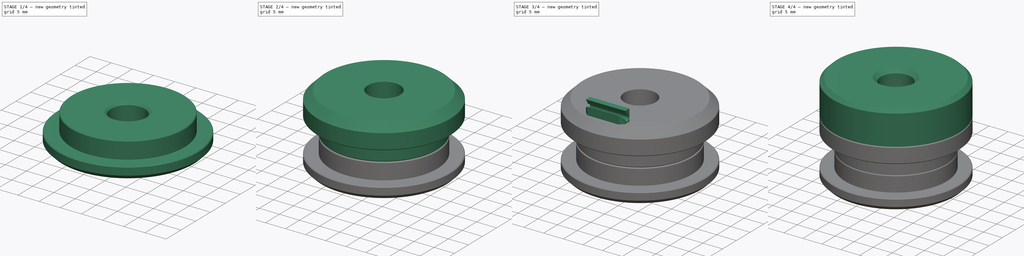
[diagram: build sequence overview — one tinted view per stage of 4, left to right]
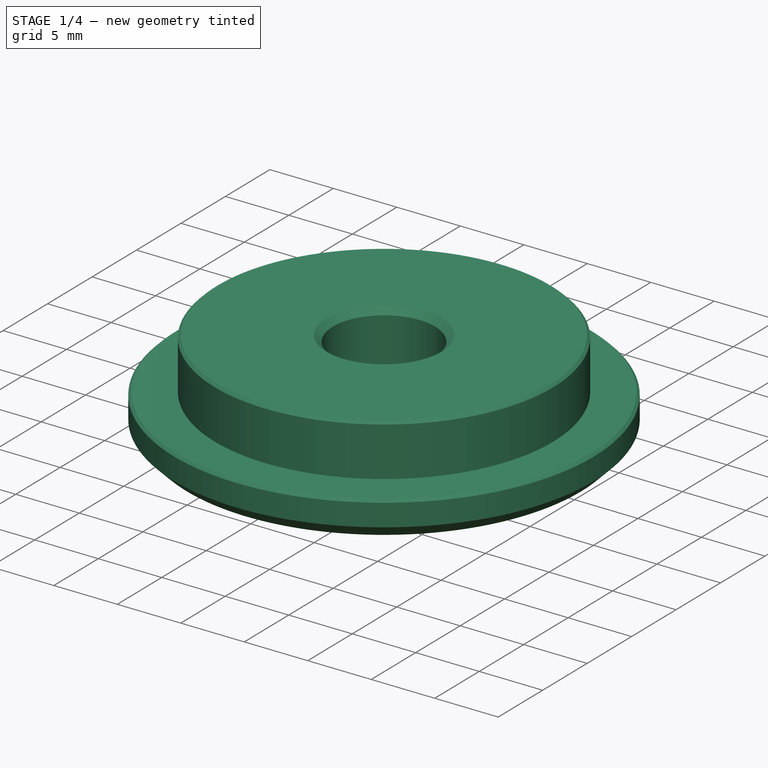
[diagram: stage 1 of 4 — iso view after this stage's code; geometry added in this stage tinted green]
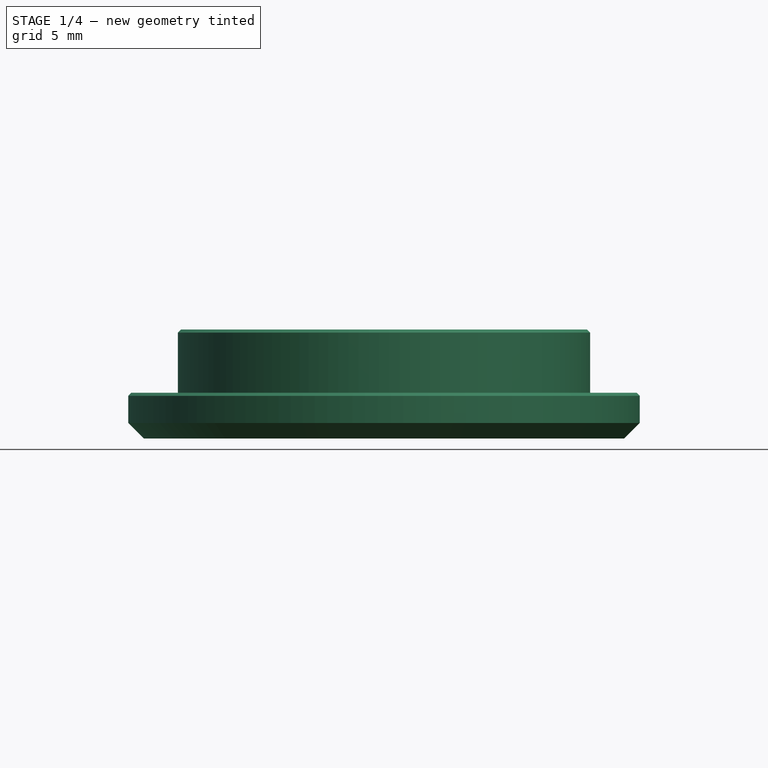
[diagram: stage 1 of 4 — front view after this stage's code; geometry added in this stage tinted green]
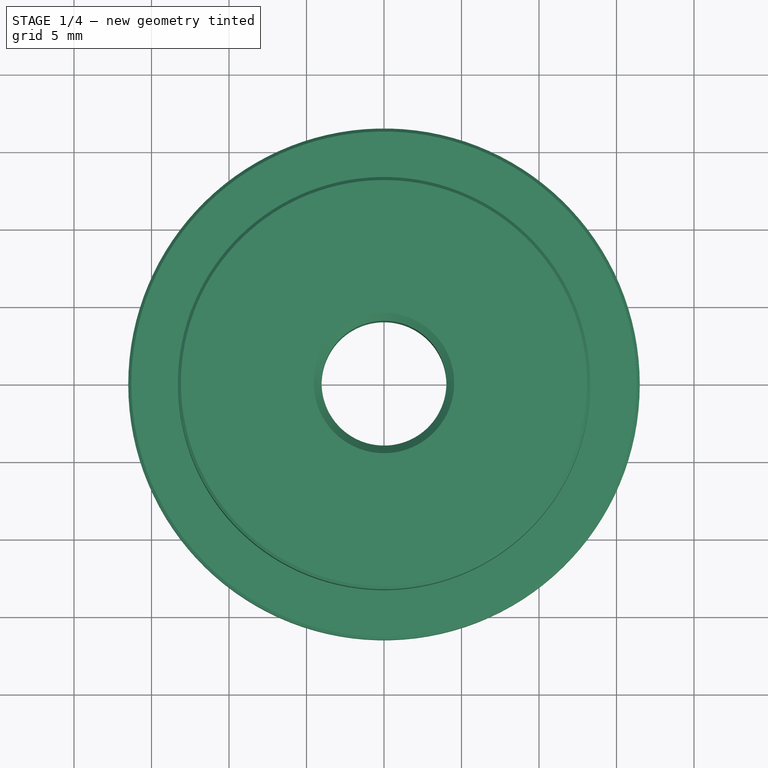
[diagram: stage 1 of 4 — top view after this stage's code; geometry added in this stage tinted green]
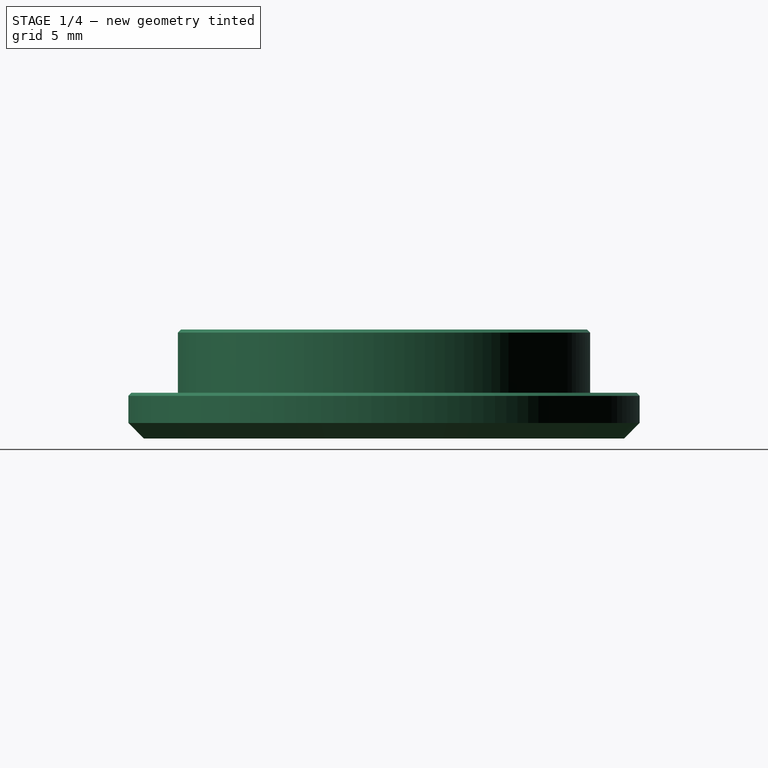
[diagram: stage 1 of 4 — right view after this stage's code; geometry added in this stage tinted green]
FCSTD DOCUMENT  (FreeCAD 1.0R39109 (Git))
Label: M56_bushing_front_back
License: All rights reserved
LicenseURL: https://en.wikipedia.org/wiki/All_rights_reserved
objects: PartDesign::Chamfer×9, Sketcher::SketchObject×5, PartDesign::Revolution×3, PartDesign::Body×3, Spreadsheet::Sheet×1, PartDesign::Pad×1, PartDesign::Pocket×1
note: 55 computed .brp shape members not serialized (recipe doc carries the construction recipe); baked Part::Feature solids carry a one-line shape summary decoded from their .brp

FEATURE [Sketcher::SketchObject] Sketch002
  ArcFitTolerance = 1e-06
  AttachmentSupport = -> [XZ_Plane002]
  FullyConstrained = true
  MakeInternals = false
  MapMode = 5
  Placement = pos=(0,0,0) rot=(1,0,0;1.5708rad)
  expr: Constraints[12] = Spreadsheet.jt
  expr: Constraints[13] = Spreadsheet.bl - Spreadsheet.jt + Spreadsheet.cet / 2
  expr: Constraints[14] = Spreadsheet.cet / 2 - Spreadsheet.jt
  expr: Constraints[15] = Spreadsheet.od / 2
  expr: Constraints[16] = Spreadsheet.ced / 2
  expr: Constraints[17] = Spreadsheet.id / 2
  sketch-geometry (6):
    g0: LineSegment StartX=-4.025 StartY=-0.05 StartZ=0 EndX=-13.3 EndY=-0.05 EndZ=0
    g1: LineSegment StartX=-13.3 StartY=-0.05 StartZ=0 EndX=-13.3 EndY=-4.125 EndZ=0
    g2: LineSegment StartX=-13.3 StartY=-4.125 StartZ=0 EndX=-16.5 EndY=-4.125 EndZ=0
    g3: LineSegment StartX=-16.5 StartY=-4.125 StartZ=0 EndX=-16.5 EndY=-7.075 EndZ=0
    g4: LineSegment StartX=-16.5 StartY=-7.075 StartZ=0 EndX=-4.025 EndY=-7.075 EndZ=0
    g5: LineSegment StartX=-4.025 StartY=-7.075 StartZ=0 EndX=-4.025 EndY=-0.05 EndZ=0
  constraints (18):
    c: Horizontal(g0)
    c: Coincident(g1,g0)
    c: Vertical(g1)
    c: Coincident(g2,g1)
    c: Horizontal(g2)
    c: Coincident(g3,g2)
    c: Vertical(g3)
    c: Coincident(g4,g3)
    c: Horizontal(g4)
    c: Coincident(g5,g4)
    c: Coincident(g5,g0)
    c: Vertical(g5)
    c: DistanceY(g0,g-1) = 0.05
    c: DistanceY(g4,g-1) = 7.075
    c: DistanceY(g1,g0) = 4.075
    c: DistanceX(g3,g-1) = 16.5
    c: DistanceX(g1,g-1) = 13.3
    c: DistanceX(g0,g-1) = 4.025
FEATURE [PartDesign::Revolution] Revolution002
  Angle = 360
  Angle2 = 60
  Axis = (0,2e-16,1)
  Base = (0,0,0)
  Placement = pos=(0,0,0) rot=(1,0,0;1.5708rad)
  Profile = -> Sketch002
  ReferenceAxis = -> Sketch002 [V_Axis]
  Refine = true
  Suppressed = false
  Type = 0
FEATURE [PartDesign::Chamfer] Chamfer001
  Angle = 45
  Base = -> Revolution002 [Edge8,Edge6]
  BaseFeature = -> Revolution002
  ChamferType = 0
  FlipDirection = false
  Placement = pos=(0,0,0) rot=(1,0,0;1.5708rad)
  Refine = true
  Size = 1
  Size2 = 1
  SupportTransform = false
  Suppressed = false
  UseAllEdges = false
FEATURE [PartDesign::Chamfer] Chamfer002
  Angle = 45
  Base = -> Chamfer001 [Edge8,Edge3]
  BaseFeature = -> Chamfer001
  ChamferType = 0
  FlipDirection = false
  Placement = pos=(0,0,0) rot=(1,0,0;1.5708rad)
  Refine = true
  Size = 0.2
  Size2 = 1
  SupportTransform = false
  Suppressed = false
  UseAllEdges = false
FEATURE [PartDesign::Body] Body001  label="bushing_top"
  AllowCompound = false
  Group = -> [Sketch001,Revolution001,Chamfer003,Chamfer004,Sketch003,Pad,Sketch004,Pocket,Chamfer005,Chamfer006,Chamfer007]
  Origin = -> Origin001
  Tip = -> Chamfer007
FEATURE [PartDesign::Chamfer] Chamfer008
  Angle = 45
  Base = -> Chamfer002 [Edge17]
  BaseFeature = -> Chamfer002
  ChamferType = 0
  FlipDirection = false
  Placement = pos=(0,0,0) rot=(1,0,0;1.5708rad)
  Refine = true
  Size = 0.5
  Size2 = 1
  SupportTransform = false
  Suppressed = false
  UseAllEdges = false
FEATURE [PartDesign::Body] Body002  label="bushing_bottom"
  AllowCompound = false
  Group = -> [Sketch002,Revolution002,Chamfer001,Chamfer002,Chamfer008]
  Origin = -> Origin002
  Tip = -> Chamfer008
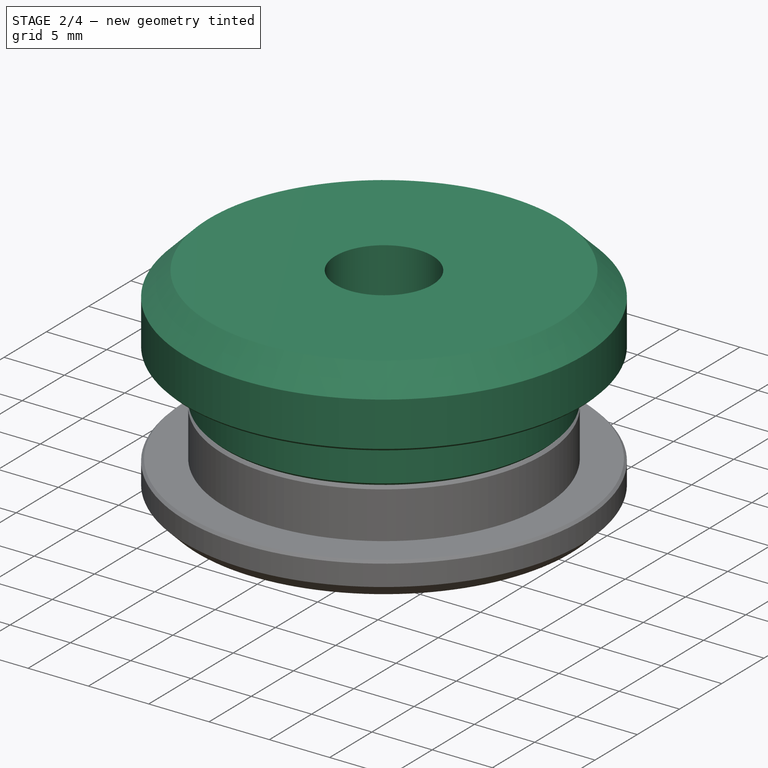
[diagram: stage 2 of 4 — iso view after this stage's code; geometry added in this stage tinted green]
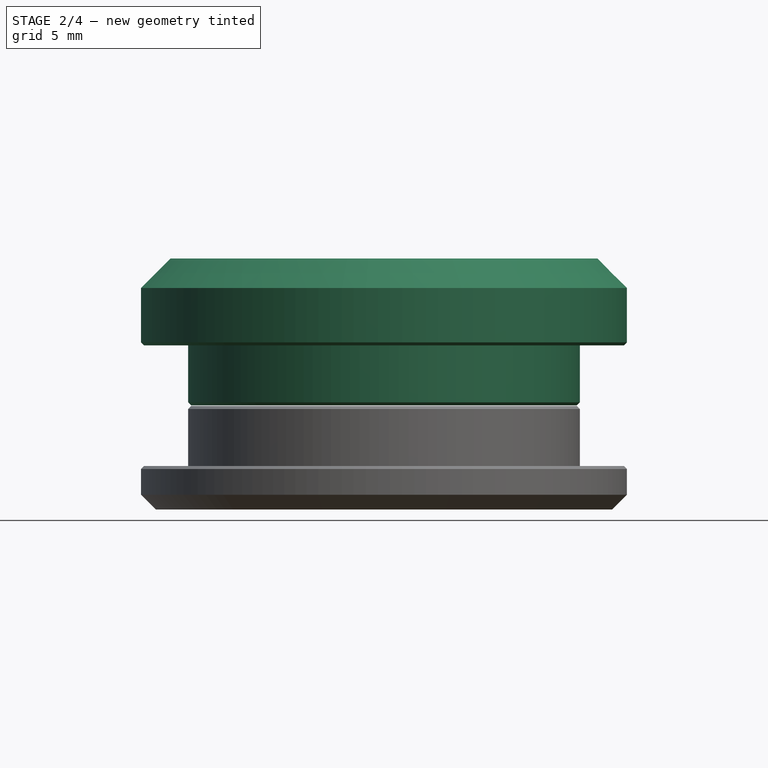
[diagram: stage 2 of 4 — front view after this stage's code; geometry added in this stage tinted green]
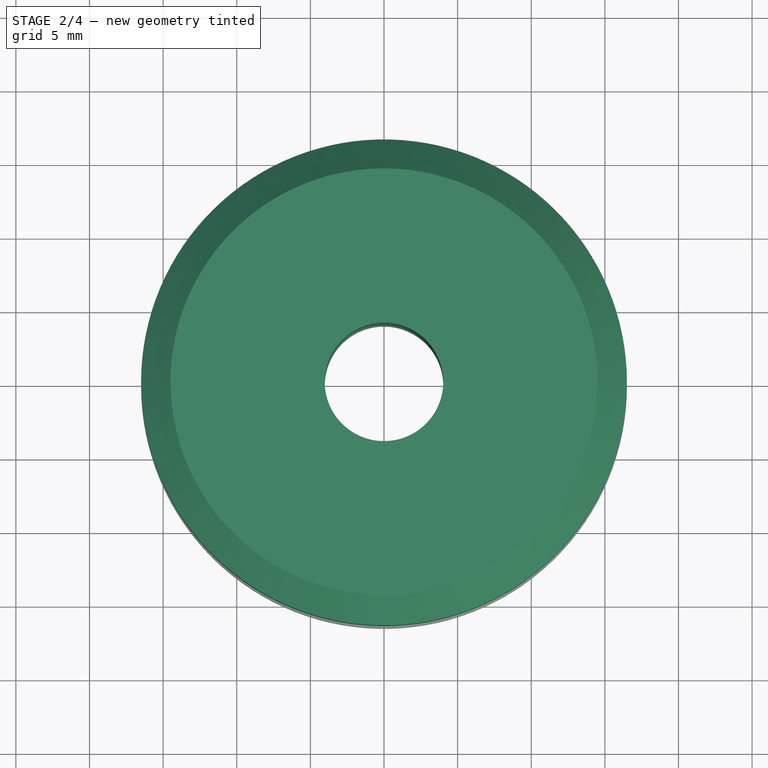
[diagram: stage 2 of 4 — top view after this stage's code; geometry added in this stage tinted green]
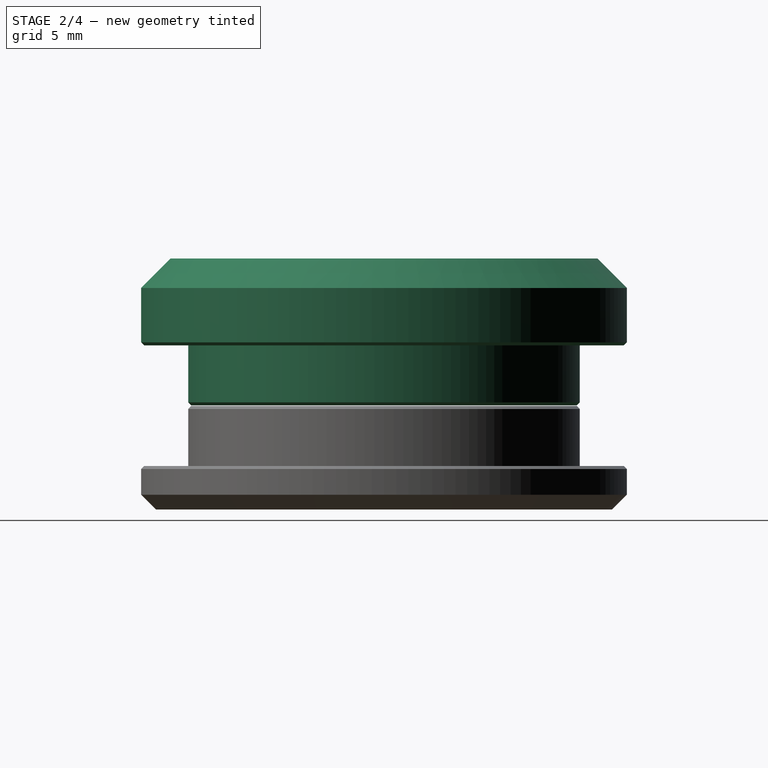
[diagram: stage 2 of 4 — right view after this stage's code; geometry added in this stage tinted green]
FEATURE [PartDesign::Body] Body
  AllowCompound = false
  Group = -> [Sketch,Revolution,Chamfer]
  Origin = -> Origin
  Tip = -> Chamfer
FEATURE [Sketcher::SketchObject] Sketch001
  ArcFitTolerance = 1e-06
  AttachmentSupport = -> [XZ_Plane001]
  FullyConstrained = true
  MakeInternals = false
  MapMode = 5
  Placement = pos=(0,0,0) rot=(1,0,0;1.5708rad)
  expr: Constraints[13] = Spreadsheet.bt - Spreadsheet.jt - Spreadsheet.bl - Spreadsheet.cet / 2
  expr: Constraints[14] = Spreadsheet.id / 2
  expr: Constraints[15] = Spreadsheet.od / 2
  expr: Constraints[16] = Spreadsheet.ced / 2
  expr: Constraints[17] = Spreadsheet.cet / 2 - Spreadsheet.jt
  sketch-geometry (6):
    g0: LineSegment StartX=-4.025 StartY=0 StartZ=0 EndX=-4.025 EndY=9.97 EndZ=0
    g1: LineSegment StartX=-4.025 StartY=9.97 StartZ=0 EndX=-16.5 EndY=9.97 EndZ=0
    g2: LineSegment StartX=-16.5 StartY=9.97 StartZ=0 EndX=-16.5 EndY=4.075 EndZ=0
    g3: LineSegment StartX=-16.5 StartY=4.075 StartZ=0 EndX=-13.3 EndY=4.075 EndZ=0
    g4: LineSegment StartX=-13.3 StartY=4.075 StartZ=0 EndX=-13.3 EndY=0 EndZ=0
    g5: LineSegment StartX=-13.3 StartY=0 StartZ=0 EndX=-4.025 EndY=0 EndZ=0
  constraints (18):
    c: PointOnObject(g0,g-1)
    c: Vertical(g0)
    c: Coincident(g1,g0)
    c: Horizontal(g1)
    c: Coincident(g2,g1)
    c: Vertical(g2)
    c: Coincident(g3,g2)
    c: Horizontal(g3)
    c: Coincident(g4,g3)
    c: PointOnObject(g4,g-1)
    c: Vertical(g4)
    c: Coincident(g5,g4)
    c: Coincident(g5,g0)
    c: DistanceY(g0,g0) = 9.97
    c: DistanceX(g0,g-1) = 4.025
    c: DistanceX(g1,g-1) = 16.5
    c: DistanceX(g4,g-1) = 13.3
    c: DistanceY(g4,g3) = 4.075
FEATURE [PartDesign::Revolution] Revolution001
  Angle = 360
  Angle2 = 60
  Axis = (0,2e-16,1)
  Base = (0,0,0)
  Placement = pos=(0,0,0) rot=(1,0,0;1.5708rad)
  Profile = -> Sketch001
  ReferenceAxis = -> Sketch001 [V_Axis]
  Refine = true
  Suppressed = false
  Type = 0
FEATURE [PartDesign::Chamfer] Chamfer003
  Angle = 45
  Base = -> Revolution001 [Edge8,Edge5]
  BaseFeature = -> Revolution001
  ChamferType = 0
  FlipDirection = false
  Placement = pos=(0,0,0) rot=(1,0,0;1.5708rad)
  Refine = true
  Size = 0.2
  Size2 = 1
  SupportTransform = false
  Suppressed = false
  UseAllEdges = false
FEATURE [PartDesign::Chamfer] Chamfer004
  Angle = 45
  Base = -> Chamfer003 [Edge3]
  BaseFeature = -> Chamfer003
  ChamferType = 0
  FlipDirection = false
  Placement = pos=(0,0,0) rot=(1,0,0;1.5708rad)
  Refine = true
  Size = 2
  Size2 = 1
  SupportTransform = false
  Suppressed = false
  UseAllEdges = false
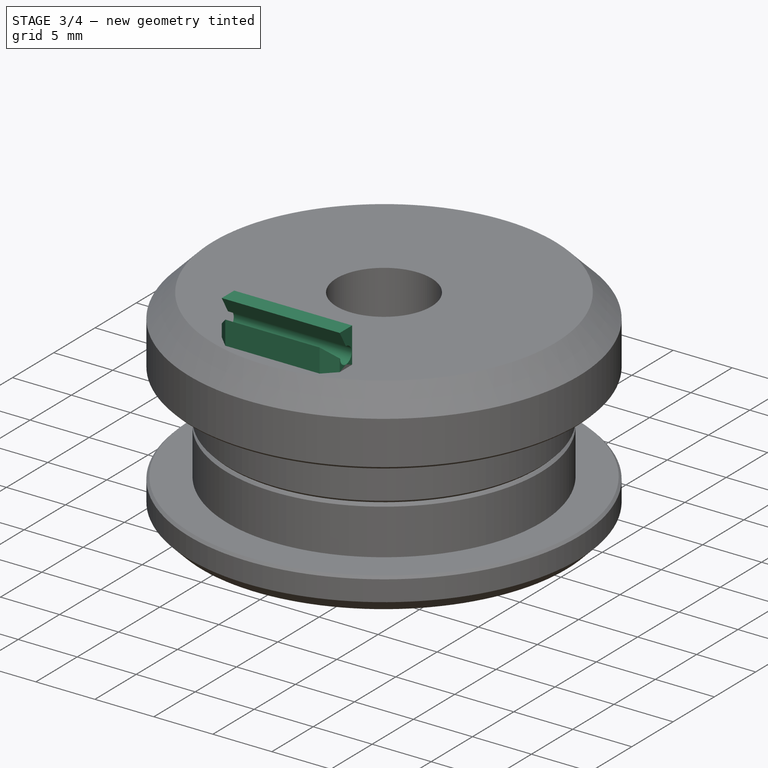
[diagram: stage 3 of 4 — iso view after this stage's code; geometry added in this stage tinted green]
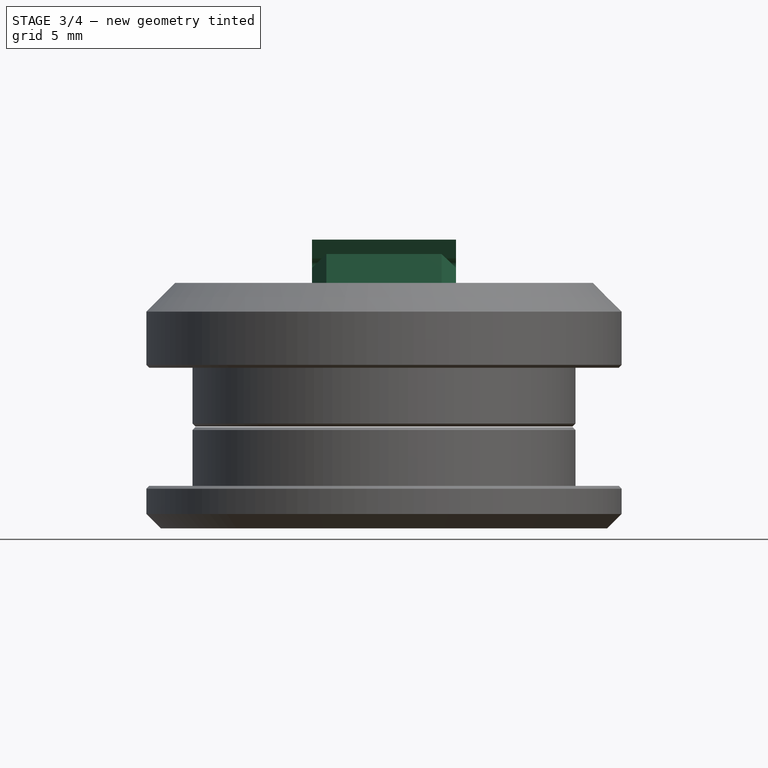
[diagram: stage 3 of 4 — front view after this stage's code; geometry added in this stage tinted green]
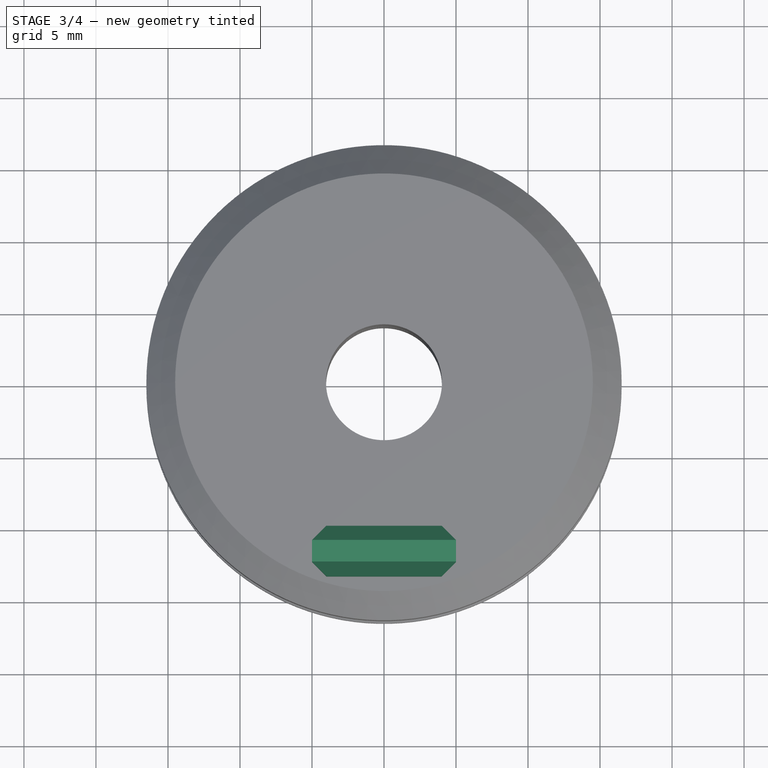
[diagram: stage 3 of 4 — top view after this stage's code; geometry added in this stage tinted green]
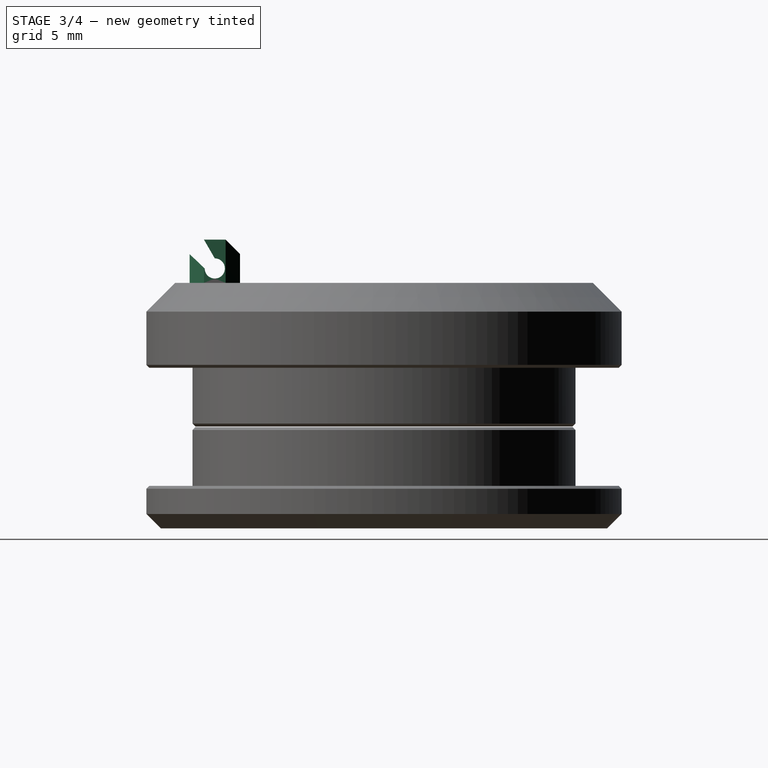
[diagram: stage 3 of 4 — right view after this stage's code; geometry added in this stage tinted green]
FEATURE [Sketcher::SketchObject] Sketch003
  ArcFitTolerance = 1e-06
  AttachmentSupport = -> [Chamfer004]
  ExternalGeometry = -> [Chamfer004]
  FullyConstrained = true
  MakeInternals = false
  MapMode = 5
  Placement = pos=(0,4.4e-15,9.97) rot=(0,0,1;3.14159rad)
  sketch-geometry (4):
    g0: LineSegment StartX=-5 StartY=13.5 StartZ=0 EndX=-5 EndY=10 EndZ=0
    g1: LineSegment StartX=-5 StartY=10 StartZ=0 EndX=5 EndY=10 EndZ=0
    g2: LineSegment StartX=5 StartY=10 StartZ=0 EndX=5 EndY=13.5 EndZ=0
    g3: LineSegment StartX=5 StartY=13.5 StartZ=0 EndX=-5 EndY=13.5 EndZ=0
  constraints (12):
    c: Coincident(g0,g1)
    c: Coincident(g1,g2)
    c: Coincident(g2,g3)
    c: Coincident(g3,g0)
    c: Vertical(g0)
    c: Vertical(g2)
    c: Horizontal(g1)
    c: Horizontal(g3)
    c: DistanceX(g1,g1) = 10
    c: DistanceY(g2,g2) = 3.5
    c: DistanceX(g-1,g1) = 5
    c: DistanceY(g-1,g1) = 10
FEATURE [PartDesign::Pad] Pad
  BaseFeature = -> Chamfer004
  Direction = (0,0,1)
  Length = 3
  Length2 = 10
  Placement = pos=(0,0,0) rot=(1,0,0;1.5708rad)
  Profile = -> Sketch003
  ReferenceAxis = -> Sketch003 [N_Axis]
  Refine = true
  Suppressed = false
  Type = 0
FEATURE [Sketcher::SketchObject] Sketch004
  ArcFitTolerance = 1e-06
  AttachmentSupport = -> [Pad]
  ExternalGeometry = -> [Pad]
  FullyConstrained = true
  MakeInternals = false
  MapMode = 5
  Placement = pos=(5,0,0) rot=(0.707107,0,0.707107;3.14159rad)
  sketch-geometry (5):
    g0: ArcOfCircle CenterX=10.97 CenterY=11.75 CenterZ=0 NormalX=0 NormalY=0 NormalZ=1 AngleXU=0 Radius=0.7 StartAngle=1.5708 EndAngle=6.28319
    g1: LineSegment StartX=10.97 StartY=12.45 StartZ=0 EndX=11.97 EndY=13.5 EndZ=0
    g2: LineSegment StartX=11.67 StartY=11.75 StartZ=0 EndX=12.97 EndY=12.5 EndZ=0
    g3: LineSegment StartX=12.97 StartY=12.5 StartZ=0 EndX=12.97 EndY=13.5 EndZ=0
    g4: LineSegment StartX=12.97 StartY=13.5 StartZ=0 EndX=11.97 EndY=13.5 EndZ=0
  constraints (15):
    c: Coincident(g1,g0)
    c: Coincident(g2,g0)
    c: PointOnObject(g2,g-3)
    c: Coincident(g3,g2)
    c: Coincident(g3,g-3)
    c: Coincident(g4,g3)
    c: Coincident(g4,g1)
    c: Horizontal(g4)
    c: Radius(g0) = 0.7
    c: Horizontal(g0,g0)
    c: Vertical(g0,g0)
    c: DistanceX(g4,g4) = 1
    c: DistanceY(g3,g3) = 1
    c: DistanceY(g-3,g0) = 1.75
    c: DistanceX(g0,g-3) = 2
FEATURE [PartDesign::Pocket] Pocket
  BaseFeature = -> Pad
  Direction = (-1,0,2e-16)
  Length = 10
  Length2 = 5
  Placement = pos=(0,0,0) rot=(1,0,0;1.5708rad)
  Profile = -> Sketch004
  ReferenceAxis = -> Sketch004 [N_Axis]
  Refine = true
  Suppressed = false
  Type = 0
FEATURE [PartDesign::Chamfer] Chamfer005
  Angle = 45
  Base = -> Pocket [Edge25,Edge24,Edge23,Edge16,Edge18]
  BaseFeature = -> Pocket
  ChamferType = 0
  FlipDirection = false
  Placement = pos=(0,0,0) rot=(1,0,0;1.5708rad)
  Refine = true
  Size = 1
  Size2 = 1
  SupportTransform = false
  Suppressed = false
  UseAllEdges = false
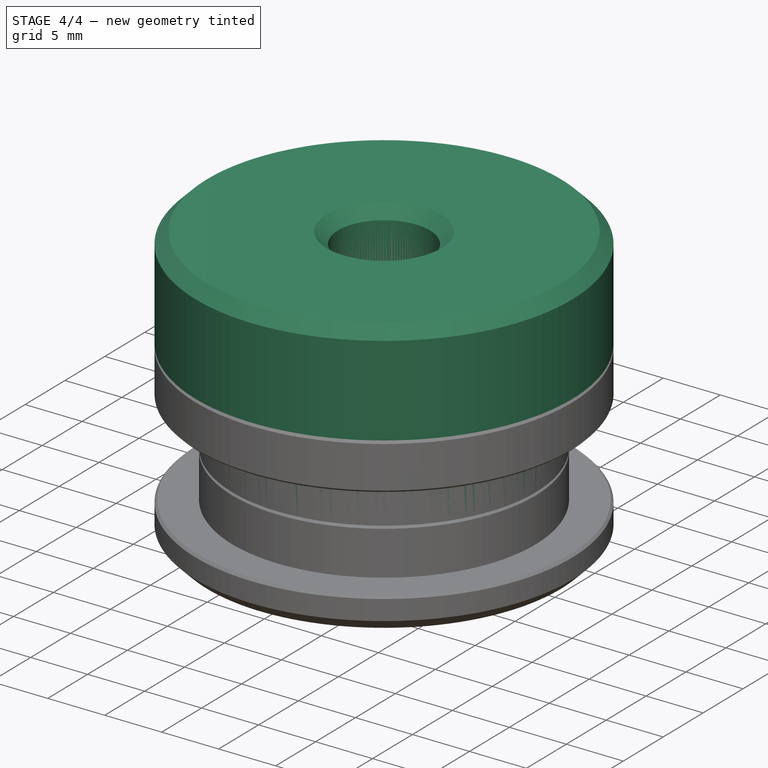
[diagram: stage 4 of 4 — iso view after this stage's code; geometry added in this stage tinted green]
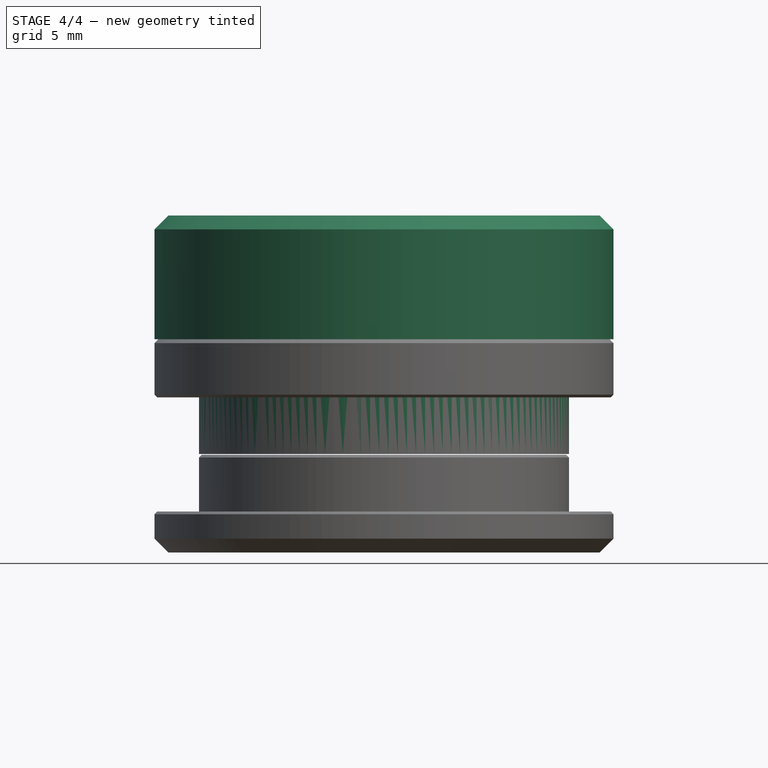
[diagram: stage 4 of 4 — front view after this stage's code; geometry added in this stage tinted green]
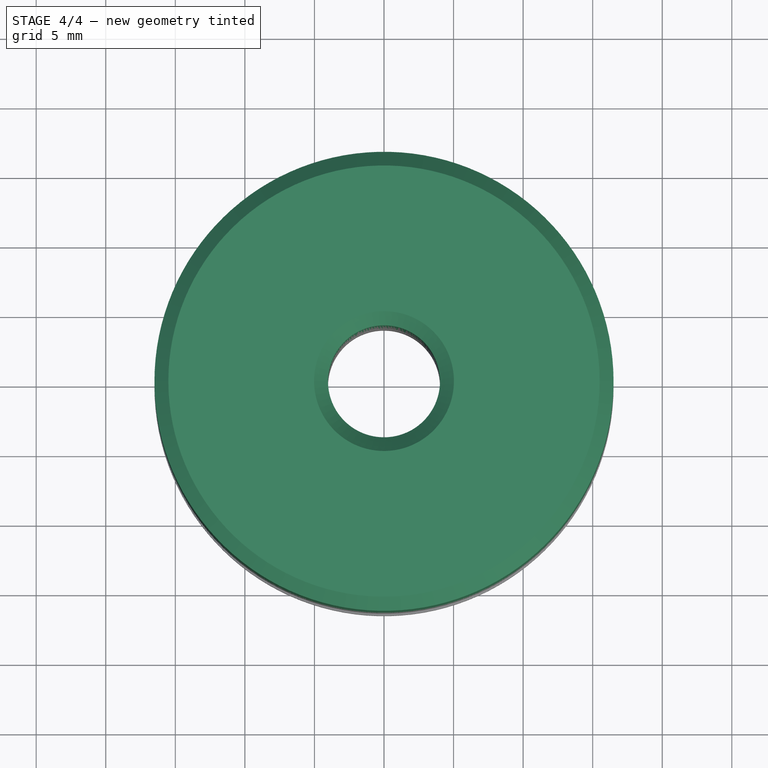
[diagram: stage 4 of 4 — top view after this stage's code; geometry added in this stage tinted green]
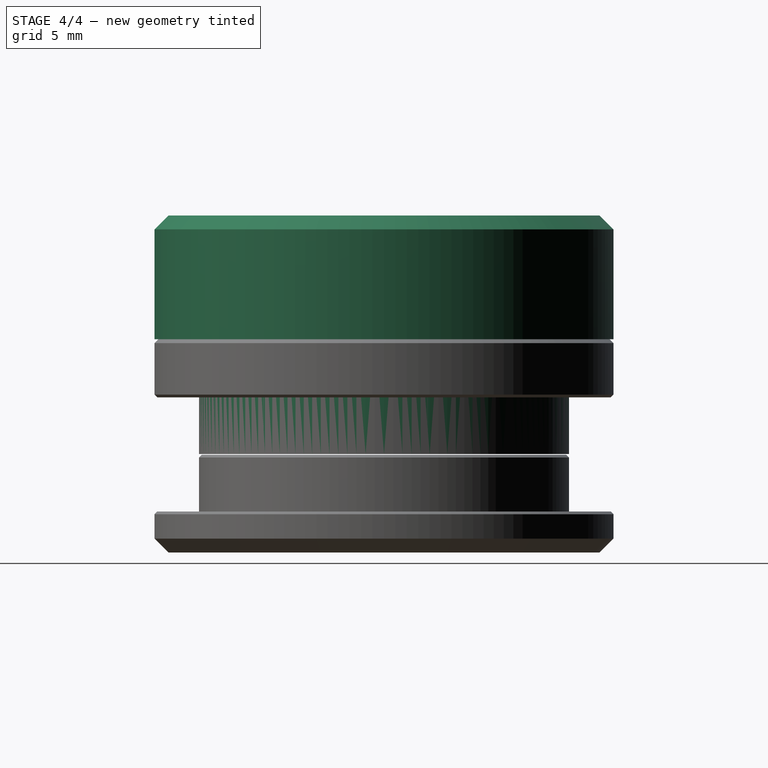
[diagram: stage 4 of 4 — right view after this stage's code; geometry added in this stage tinted green]
FEATURE [Sketcher::SketchObject] Sketch
  ArcFitTolerance = 1e-06
  AttachmentSupport = -> [XZ_Plane]
  FullyConstrained = true
  MakeInternals = false
  MapMode = 5
  Placement = pos=(0,0,0) rot=(1,0,0;1.5708rad)
  expr: Constraints[13] = Spreadsheet.id / 2
  expr: Constraints[14] = Spreadsheet.od / 2
  expr: Constraints[15] = Spreadsheet.ced / 2
  expr: Constraints[16] = Spreadsheet.cet
  expr: Constraints[17] = Spreadsheet.bt
  sketch-geometry (6):
    g0: LineSegment StartX=-4.025 StartY=0 StartZ=0 EndX=-4.025 EndY=17.145 EndZ=0
    g1: LineSegment StartX=-4.025 StartY=17.145 StartZ=0 EndX=-16.5 EndY=17.145 EndZ=0
    g2: LineSegment StartX=-16.5 StartY=17.145 StartZ=0 EndX=-16.5 EndY=8.25 EndZ=0
    g3: LineSegment StartX=-16.5 StartY=8.25 StartZ=0 EndX=-13.3 EndY=8.25 EndZ=0
    g4: LineSegment StartX=-13.3 StartY=8.25 StartZ=0 EndX=-13.3 EndY=0 EndZ=0
    g5: LineSegment StartX=-13.3 StartY=0 StartZ=0 EndX=-4.025 EndY=0 EndZ=0
  constraints (18):
    c: PointOnObject(g0,g-1)
    c: Vertical(g0)
    c: Coincident(g1,g0)
    c: Horizontal(g1)
    c: Coincident(g2,g1)
    c: Vertical(g2)
    c: Coincident(g3,g2)
    c: Horizontal(g3)
    c: Coincident(g4,g3)
    c: PointOnObject(g4,g-1)
    c: Vertical(g4)
    c: Coincident(g5,g4)
    c: Coincident(g5,g0)
    c: DistanceX(g0,g-1) = 4.025
    c: DistanceX(g1,g-1) = 16.5
    c: DistanceX(g3,g-1) = 13.3
    c: DistanceY(g-1,g3) = 8.25
    c: DistanceY(g0,g0) = 17.145
FEATURE [Spreadsheet::Sheet] Spreadsheet
  cells = A1='id; B1(id)=8.05; C1='Hole diameter; A2='od; B2(od)=33; C2='Outer diameter; A3='ced; B3(ced)=26.6; C3='cable end diameter; A4='cet; B4(cet)=8.25; C4='Cable end thickness; D4='cet varies; A5='bt; B5(bt)=17.145; C5='Bushing thickness; D5='8.255 for front/back; D6='11.43 for left/right; A14='jt; B14(jt)=0.05; C14='joining tolerance; A15='bl; B15(bl)=3; C15='bottom lip
FEATURE [PartDesign::Revolution] Revolution
  Angle = 360
  Angle2 = 60
  Axis = (0,2e-16,1)
  Base = (0,0,0)
  Placement = pos=(0,0,0) rot=(1,0,0;1.5708rad)
  Profile = -> Sketch
  ReferenceAxis = -> Sketch [V_Axis]
  Refine = true
  Suppressed = false
  Type = 0
FEATURE [PartDesign::Chamfer] Chamfer
  Angle = 45
  Base = -> Revolution [Edge4,Edge2,Edge1]
  BaseFeature = -> Revolution
  ChamferType = 0
  FlipDirection = false
  Placement = pos=(0,0,0) rot=(1,0,0;1.5708rad)
  Refine = true
  Size = 1
  Size2 = 1
  SupportTransform = false
  Suppressed = false
  UseAllEdges = false
FEATURE [PartDesign::Chamfer] Chamfer006
  Angle = 45
  Base = -> Chamfer005 [Edge10]
  BaseFeature = -> Chamfer005
  ChamferType = 0
  FlipDirection = false
  Placement = pos=(0,0,0) rot=(1,0,0;1.5708rad)
  Refine = true
  Size = 1
  Size2 = 1
  SupportTransform = false
  Suppressed = false
  UseAllEdges = false
FEATURE [PartDesign::Chamfer] Chamfer007
  Angle = 45
  Base = -> Chamfer006 [Edge38]
  BaseFeature = -> Chamfer006
  ChamferType = 0
  FlipDirection = false
  Placement = pos=(0,0,0) rot=(1,0,0;1.5708rad)
  Refine = true
  Size = 0.5
  Size2 = 1
  SupportTransform = false
  Suppressed = false
  UseAllEdges = false
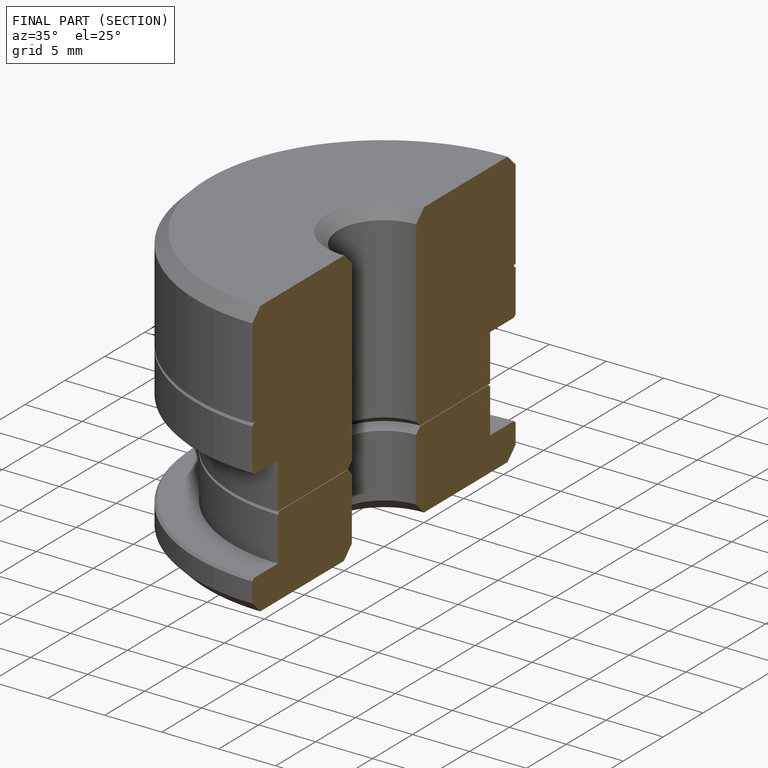
[diagram: finished part — half-section view (interior)]
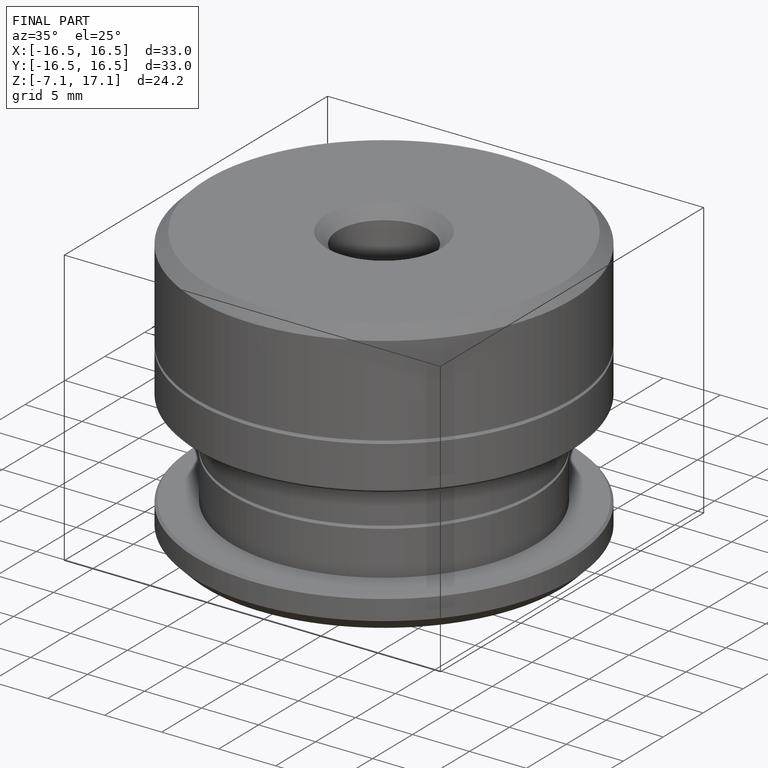
[diagram: finished part — iso view with bounding-box wireframe]
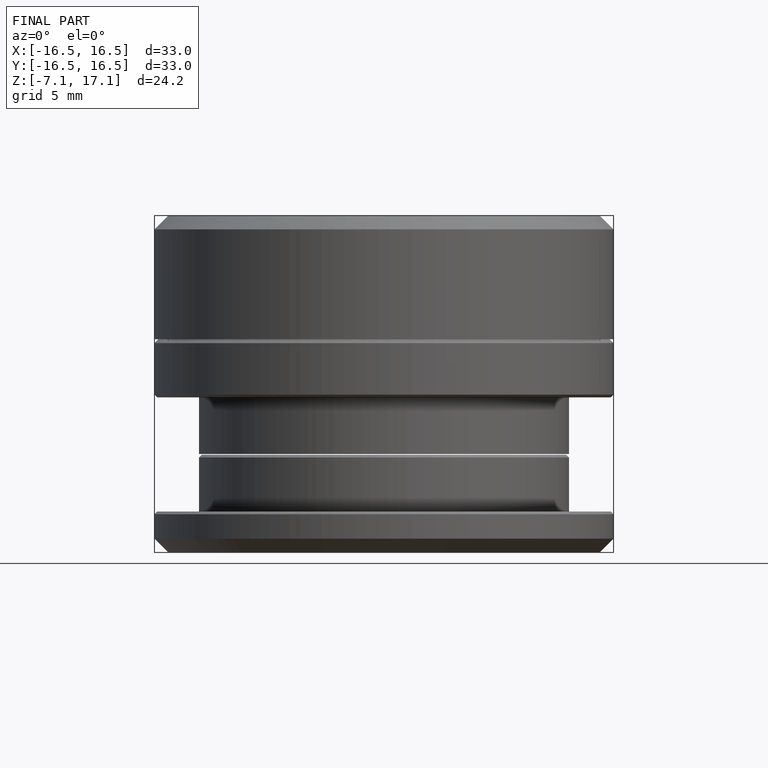
[diagram: finished part — front view with bounding-box wireframe]
